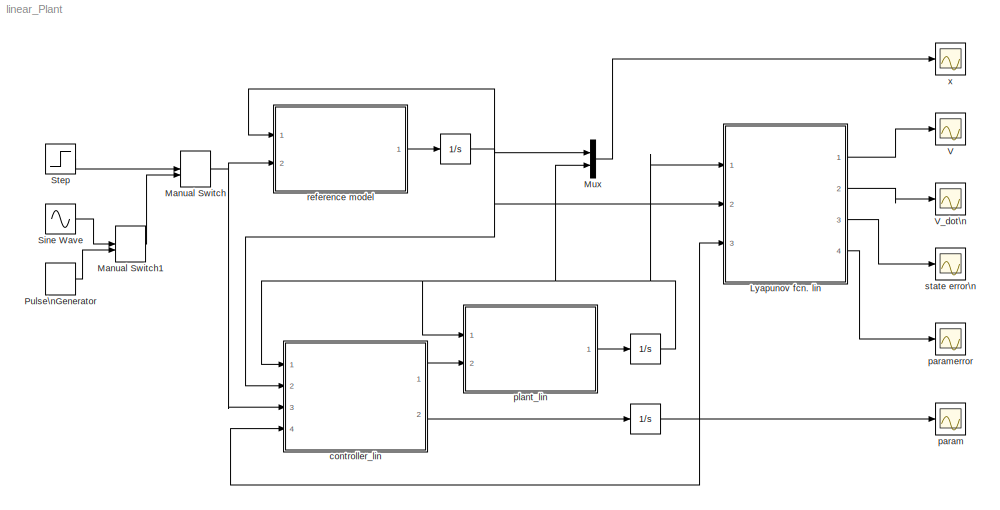
MODEL linear_Plant
KIND model
BLOCK [Integrator]  
  InitialCondition = x_p_0
  Ports = [1, 1]
  SID = 6
BLOCK [Integrator]     
  InitialCondition = param_0(1:2)'
  Ports = [1, 1]
  SID = 13
BLOCK [Integrator]      
  InitialCondition = x_m_0
  Ports = [1, 1]
  SID = 5
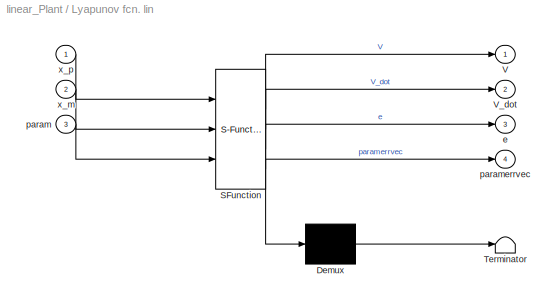
BLOCK [SubSystem] Lyapunov fcn. lin
  ErrorFcn = Stateflow.Translate.translate
  FunctionWithSeparateData = off
  MaskHideContents = off
  MinAlgLoopOccurrences = off
  Opaque = off
  PermitHierarchicalResolution = ParametersOnly
  Ports = [3, 4]
  PropExecContextOutsideSubsystem = off
  RTWSystemCode = Auto
  RequestExecContextInheritance = off
  SFBlockType = MATLAB Function
  SID = 27
  TreatAsAtomicUnit = on
BLOCK [Demux] Lyapunov fcn. lin/ Demux 
  Outputs = 1
  Ports = [1, 1]
  SID = 27::19
BLOCK [S-Function] Lyapunov fcn. lin/ SFunction 
  EnableBusSupport = on
  FunctionName = sf_sfun
  Parameters = Gamma,a_m,k_p,k_star,theta_star
  PortCounts = [3 5]
  Ports = [3, 5]
  SID = 27::18
  Tag = Stateflow S-Function linear_Plant 4
BLOCK [Terminator] Lyapunov fcn. lin/ Terminator 
  SID = 27::20
BLOCK [Outport] Lyapunov fcn. lin/V
  IconDisplay = Port number
  SID = 27::23
BLOCK [Outport] Lyapunov fcn. lin/V_dot
  IconDisplay = Port number
  Port = 2
  SID = 27::28
BLOCK [Outport] Lyapunov fcn. lin/e
  IconDisplay = Port number
  Port = 3
  SID = 27::34
BLOCK [Inport] Lyapunov fcn. lin/param
  IconDisplay = Port number
  Port = 3
  SID = 27::27
BLOCK [Outport] Lyapunov fcn. lin/paramerrvec
  IconDisplay = Port number
  Port = 4
  SID = 27::33
BLOCK [Inport] Lyapunov fcn. lin/x_m
  IconDisplay = Port number
  Port = 2
  SID = 27::22
BLOCK [Inport] Lyapunov fcn. lin/x_p
  IconDisplay = Port number
  SID = 27::21
BLOCK [ManualSwitch] Manual Switch
  CurrentSetting = 0
  SID = 8
BLOCK [ManualSwitch] Manual Switch1
  SID = 10
BLOCK [Mux] Mux
  DisplayOption = bar
  Inputs = 2
  Ports = [2, 1]
  SID = 23
BLOCK [DiscretePulseGenerator] Pulse\nGenerator
  Amplitude = 4
  Period = 4
  Ports = [0, 1]
  PulseType = Time based
  PulseWidth = 50
  SID = 12
BLOCK [Sin] Sine Wave
  Amplitude = 4
  Frequency = 2*pi/4
  Ports = [0, 1]
  SID = 11
  SampleTime = 0
BLOCK [Step] Step
  SID = 9
  SampleTime = 0
BLOCK [Scope] V
  DataFormat = StructureWithTime
  Floating = off
  LimitDataPoints = off
  NumInputPorts = 1
  Ports = [1]
  SID = 28
  SaveName = lyapunov
  SaveToWorkspace = on
  ShowLegends = off
BLOCK [Scope] V_dot\n
  DataFormat = StructureWithTime
  Floating = off
  LimitDataPoints = off
  NumInputPorts = 1
  Ports = [1]
  SID = 29
  SaveName = lyapunov_dot
  SaveToWorkspace = on
  ShowLegends = off
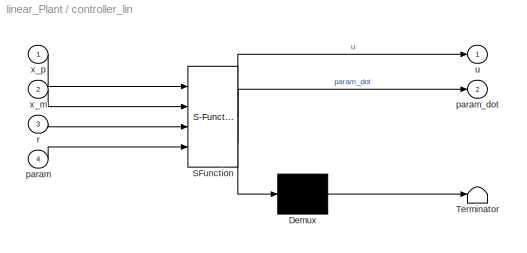
BLOCK [SubSystem] controller_lin
  ErrorFcn = Stateflow.Translate.translate
  FunctionWithSeparateData = off
  MaskHideContents = off
  MinAlgLoopOccurrences = off
  Opaque = off
  PermitHierarchicalResolution = ParametersOnly
  Ports = [4, 2]
  PropExecContextOutsideSubsystem = off
  RTWSystemCode = Auto
  RequestExecContextInheritance = off
  SFBlockType = MATLAB Function
  SID = 1
  TreatAsAtomicUnit = on
BLOCK [Demux] controller_lin/ Demux 
  Outputs = 1
  Ports = [1, 1]
  SID = 1::19
BLOCK [S-Function] controller_lin/ SFunction 
  EnableBusSupport = on
  FunctionName = sf_sfun
  Parameters = Gamma,k_p
  PortCounts = [4 3]
  Ports = [4, 3]
  SID = 1::18
  Tag = Stateflow S-Function linear_Plant 2
BLOCK [Terminator] controller_lin/ Terminator 
  SID = 1::20
BLOCK [Inport] controller_lin/param
  IconDisplay = Port number
  Port = 4
  SID = 1::24
BLOCK [Outport] controller_lin/param_dot
  IconDisplay = Port number
  Port = 2
  SID = 1::26
BLOCK [Inport] controller_lin/r
  IconDisplay = Port number
  Port = 3
  SID = 1::22
BLOCK [Outport] controller_lin/u
  IconDisplay = Port number
  SID = 1::23
BLOCK [Inport] controller_lin/x_m
  IconDisplay = Port number
  Port = 2
  SID = 1::28
BLOCK [Inport] controller_lin/x_p
  IconDisplay = Port number
  SID = 1::21
BLOCK [Scope] param
  DataFormat = StructureWithTime
  Floating = off
  LimitDataPoints = off
  NumInputPorts = 1
  Ports = [1]
  SID = 34
  SaveName = parameters
  SaveToWorkspace = on
  ShowLegends = off
BLOCK [Scope] paramerror
  DataFormat = StructureWithTime
  Floating = off
  LimitDataPoints = off
  NumInputPorts = 1
  Ports = [1]
  SID = 32
  SaveName = parameter_errors
  SaveToWorkspace = on
  ShowLegends = off
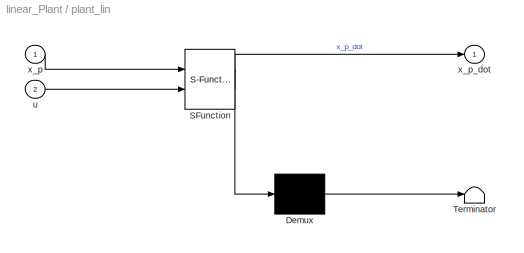
BLOCK [SubSystem] plant_lin
  ErrorFcn = Stateflow.Translate.translate
  FunctionWithSeparateData = off
  MaskHideContents = off
  MinAlgLoopOccurrences = off
  Opaque = off
  PermitHierarchicalResolution = ParametersOnly
  Ports = [2, 1]
  PropExecContextOutsideSubsystem = off
  RTWSystemCode = Auto
  RequestExecContextInheritance = off
  SFBlockType = MATLAB Function
  SID = 4
  TreatAsAtomicUnit = on
BLOCK [Demux] plant_lin/ Demux 
  Outputs = 1
  Ports = [1, 1]
  SID = 4::19
BLOCK [S-Function] plant_lin/ SFunction 
  EnableBusSupport = on
  FunctionName = sf_sfun
  Parameters = a_p,k_p
  PortCounts = [2 2]
  Ports = [2, 2]
  SID = 4::18
  Tag = Stateflow S-Function linear_Plant 3
BLOCK [Terminator] plant_lin/ Terminator 
  SID = 4::20
BLOCK [Inport] plant_lin/u
  IconDisplay = Port number
  Port = 2
  SID = 4::22
BLOCK [Inport] plant_lin/x_p
  IconDisplay = Port number
  SID = 4::21
BLOCK [Outport] plant_lin/x_p_dot
  IconDisplay = Port number
  SID = 4::23
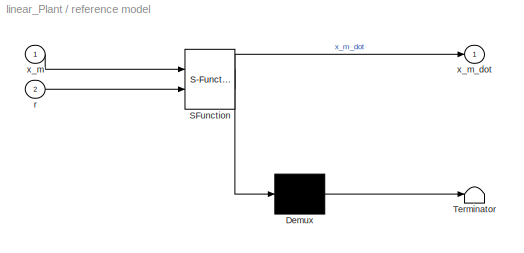
BLOCK [SubSystem] reference model
  ErrorFcn = Stateflow.Translate.translate
  FunctionWithSeparateData = off
  MaskHideContents = off
  MinAlgLoopOccurrences = off
  Opaque = off
  PermitHierarchicalResolution = ParametersOnly
  Ports = [2, 1]
  PropExecContextOutsideSubsystem = off
  RTWSystemCode = Auto
  RequestExecContextInheritance = off
  SFBlockType = MATLAB Function
  SID = 2
  TreatAsAtomicUnit = on
BLOCK [Demux] reference model/ Demux 
  Outputs = 1
  Ports = [1, 1]
  SID = 2::19
BLOCK [S-Function] reference model/ SFunction 
  EnableBusSupport = on
  FunctionName = sf_sfun
  Parameters = a_m,k_m
  PortCounts = [2 2]
  Ports = [2, 2]
  SID = 2::18
  Tag = Stateflow S-Function linear_Plant 1
BLOCK [Terminator] reference model/ Terminator 
  SID = 2::20
BLOCK [Inport] reference model/r
  IconDisplay = Port number
  Port = 2
  SID = 2::22
BLOCK [Inport] reference model/x_m
  IconDisplay = Port number
  SID = 2::21
BLOCK [Outport] reference model/x_m_dot
  IconDisplay = Port number
  SID = 2::23
BLOCK [Scope] state error\n
  DataFormat = StructureWithTime
  Floating = off
  LimitDataPoints = off
  NumInputPorts = 1
  Ports = [1]
  SID = 30
  SaveName = error
  SaveToWorkspace = on
  ShowLegends = off
BLOCK [Scope] x
  DataFormat = StructureWithTime
  Floating = off
  LimitDataPoints = off
  NumInputPorts = 1
  Ports = [1]
  SID = 24
  SaveName = modelAndPlant
  SaveToWorkspace = on
  ShowLegends = off
NET      :1 -> Lyapunov fcn. lin:2, Mux:1, controller_lin:2, reference model:1
NET     :1 -> Lyapunov fcn. lin:3, controller_lin:4, param:1
NET  :1 -> Lyapunov fcn. lin:1, Mux:2, controller_lin:1, plant_lin:1
LINE Lyapunov fcn. lin/ Demux :1 -> Lyapunov fcn. lin/ Terminator :1
LINE Lyapunov fcn. lin/ SFunction :1 -> Lyapunov fcn. lin/ Demux :1
LINE Lyapunov fcn. lin/ SFunction :2 -> Lyapunov fcn. lin/V:1
LINE Lyapunov fcn. lin/ SFunction :3 -> Lyapunov fcn. lin/V_dot:1
LINE Lyapunov fcn. lin/ SFunction :4 -> Lyapunov fcn. lin/e:1
LINE Lyapunov fcn. lin/ SFunction :5 -> Lyapunov fcn. lin/paramerrvec:1
LINE Lyapunov fcn. lin/param:1 -> Lyapunov fcn. lin/ SFunction :3
LINE Lyapunov fcn. lin/x_m:1 -> Lyapunov fcn. lin/ SFunction :2
LINE Lyapunov fcn. lin/x_p:1 -> Lyapunov fcn. lin/ SFunction :1
LINE Lyapunov fcn. lin:1 -> V:1
LINE Lyapunov fcn. lin:2 -> V_dot\n:1
LINE Lyapunov fcn. lin:3 -> state error\n:1
LINE Lyapunov fcn. lin:4 -> paramerror:1
LINE Manual Switch1:1 -> Manual Switch:2
NET Manual Switch:1 -> controller_lin:3, reference model:2
LINE Mux:1 -> x:1
LINE Pulse\nGenerator:1 -> Manual Switch1:2
LINE Sine Wave:1 -> Manual Switch1:1
LINE Step:1 -> Manual Switch:1
LINE controller_lin/ Demux :1 -> controller_lin/ Terminator :1
LINE controller_lin/ SFunction :1 -> controller_lin/ Demux :1
LINE controller_lin/ SFunction :2 -> controller_lin/u:1
LINE controller_lin/ SFunction :3 -> controller_lin/param_dot:1
LINE controller_lin/param:1 -> controller_lin/ SFunction :4
LINE controller_lin/r:1 -> controller_lin/ SFunction :3
LINE controller_lin/x_m:1 -> controller_lin/ SFunction :2
LINE controller_lin/x_p:1 -> controller_lin/ SFunction :1
LINE controller_lin:1 -> plant_lin:2
LINE controller_lin:2 ->     :1
LINE plant_lin/ Demux :1 -> plant_lin/ Terminator :1
LINE plant_lin/ SFunction :1 -> plant_lin/ Demux :1
LINE plant_lin/ SFunction :2 -> plant_lin/x_p_dot:1
LINE plant_lin/u:1 -> plant_lin/ SFunction :2
LINE plant_lin/x_p:1 -> plant_lin/ SFunction :1
LINE plant_lin:1 ->  :1
LINE reference model/ Demux :1 -> reference model/ Terminator :1
LINE reference model/ SFunction :1 -> reference model/ Demux :1
LINE reference model/ SFunction :2 -> reference model/x_m_dot:1
LINE reference model/r:1 -> reference model/ SFunction :2
LINE reference model/x_m:1 -> reference model/ SFunction :1
LINE reference model:1 ->      :1
note: NET lines group one-source signal fan-out (src -> all destinations, sorted); 1:1 wires keep LINE
CHART reference model states=1 transitions=1
  STATE_LABEL 'eML_blk_kernel()'
CHART controller_lin states=1 transitions=1
  STATE_LABEL 'eML_blk_kernel()'
CHART plant_lin states=1 transitions=1
  STATE_LABEL 'eML_blk_kernel()'
CHART Lyapunov fcn. lin states=1 transitions=1
  STATE_LABEL 'eML_blk_kernel()'
